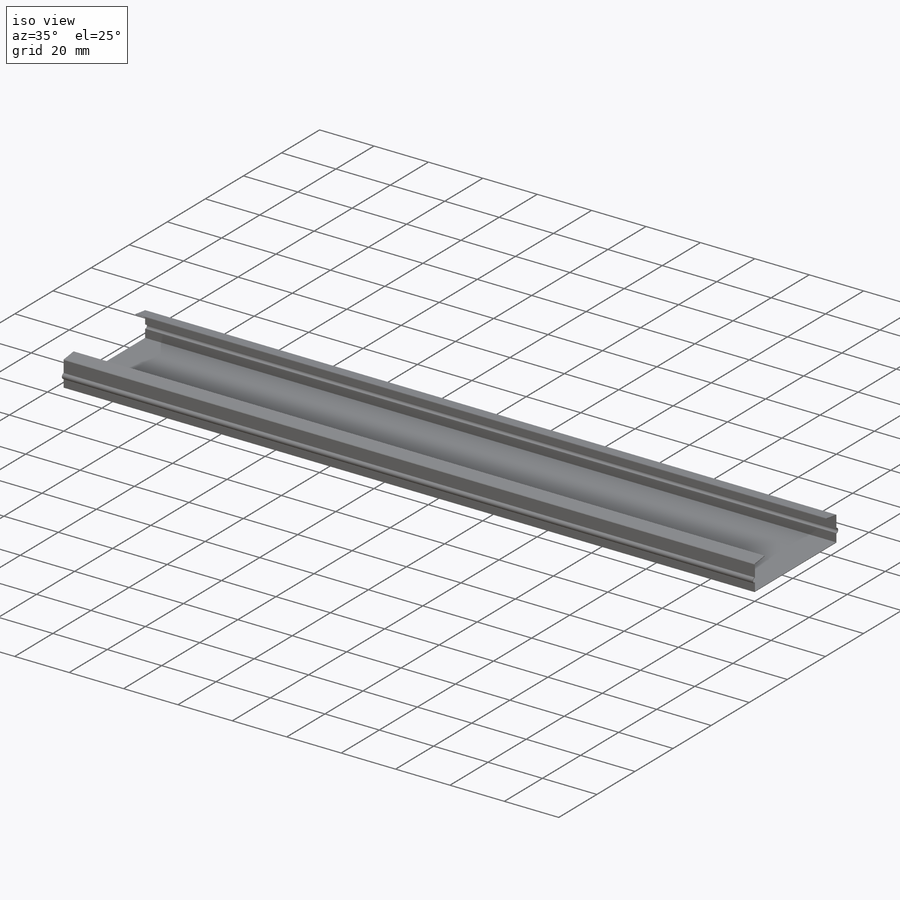
[diagram: iso view]
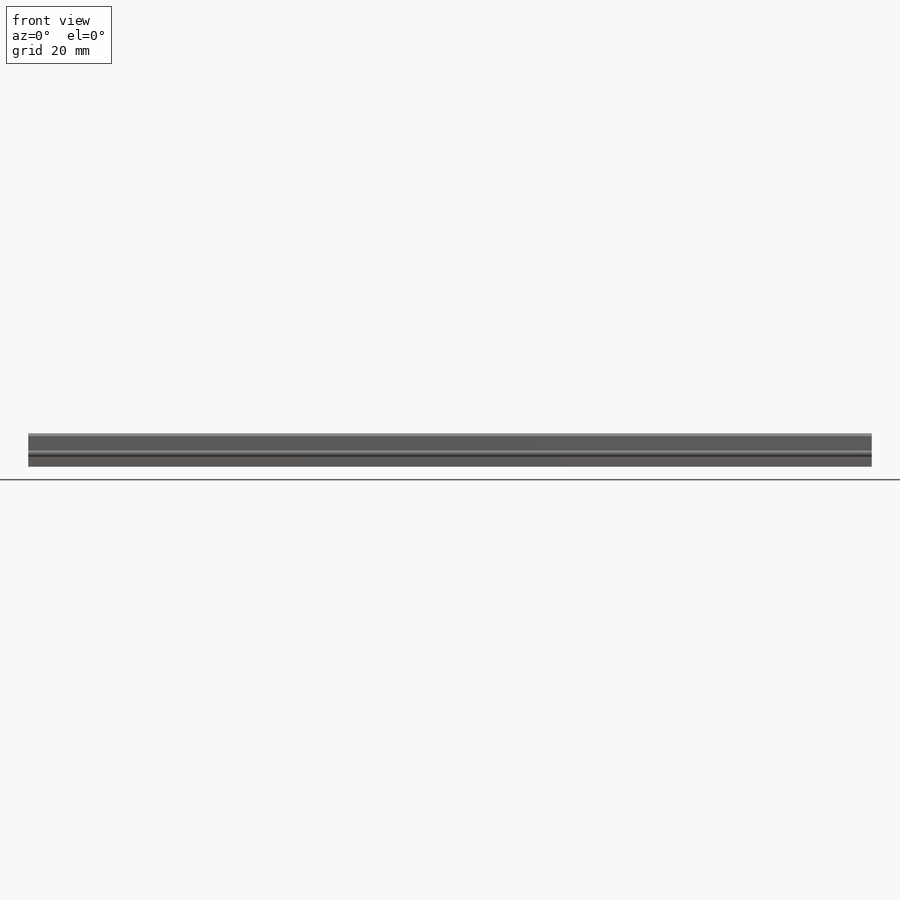
[diagram: front view]
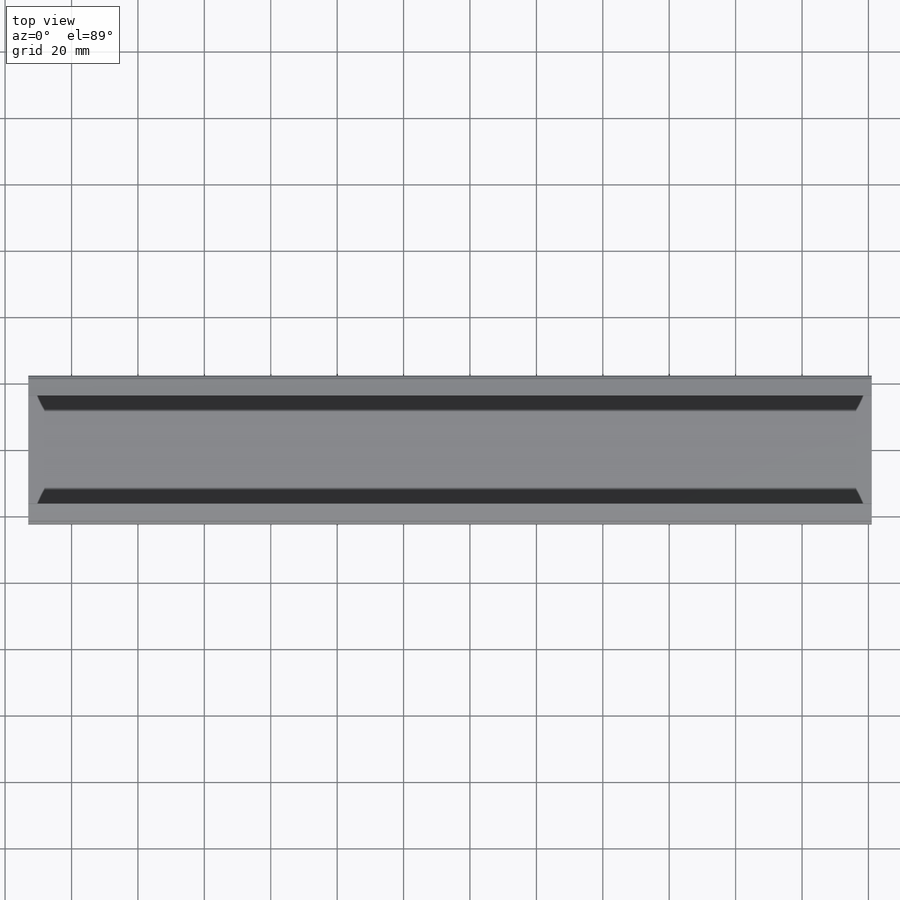
[diagram: top view]
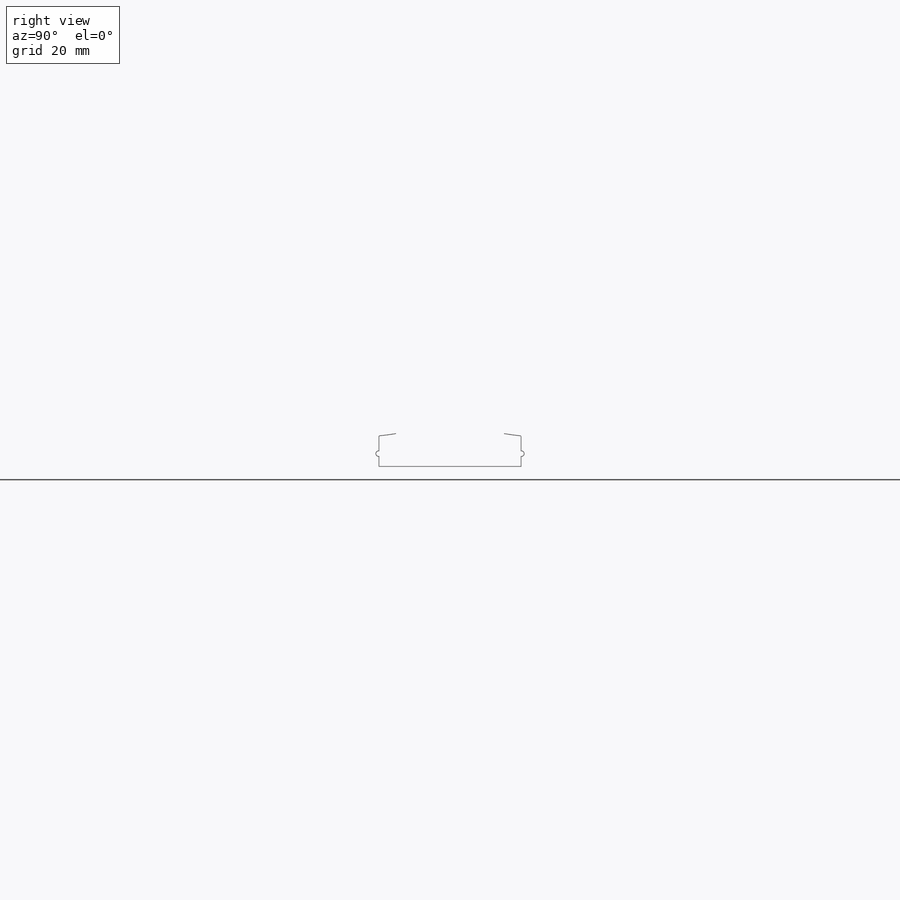
[diagram: right view]
SOLIDWORKS PART (.sldprt)
format: sldprt  version: not decoded by parser v0  size: 179,200 bytes
history: native  units: mm
features: sketch x3, extrude x2, material x1, plane x1, mirror x1 (+13 scaffold rows collapsed)
feature tree (21):
  scaffold x13  (default folders/planes/origin — collapsed)
  material  "Material <not specified>"
  sketch  "Sketch1"  dims[D1=254.0mm D2=43.0mm D3=19.05mm D4=19.05mm]
  extrude  "Boss-Extrude1"  Depth=0.2mm
  sketch  "Sketch2"  dims[D1=36.6mm]
  plane  "Plane1"
  sketch  "Sketch4"  dims[c1.D4=0.254mm c1.D1=9.0mm c1.D2=4.318mm c1.D3=4.318mm c2.D1=9.0mm c2.D2=0.2032mm c2.D3=0.2032mm]
  extrude  "Boss-Extrude2"  Depth=254mm
  mirror  "Mirror1"
decode coverage: 5 of 6 modeling features carry decoded parameters
note: suppression state not decoded; provenance and decode notes live in map.json
